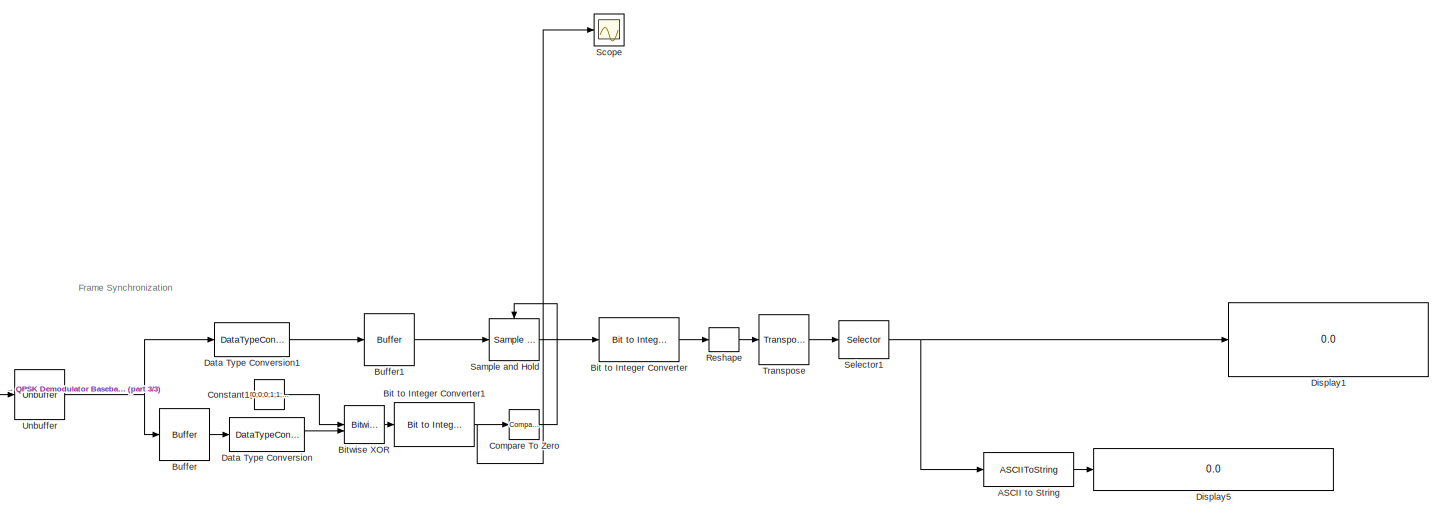
[diagram: root canvas - part 1/3, middle right region]
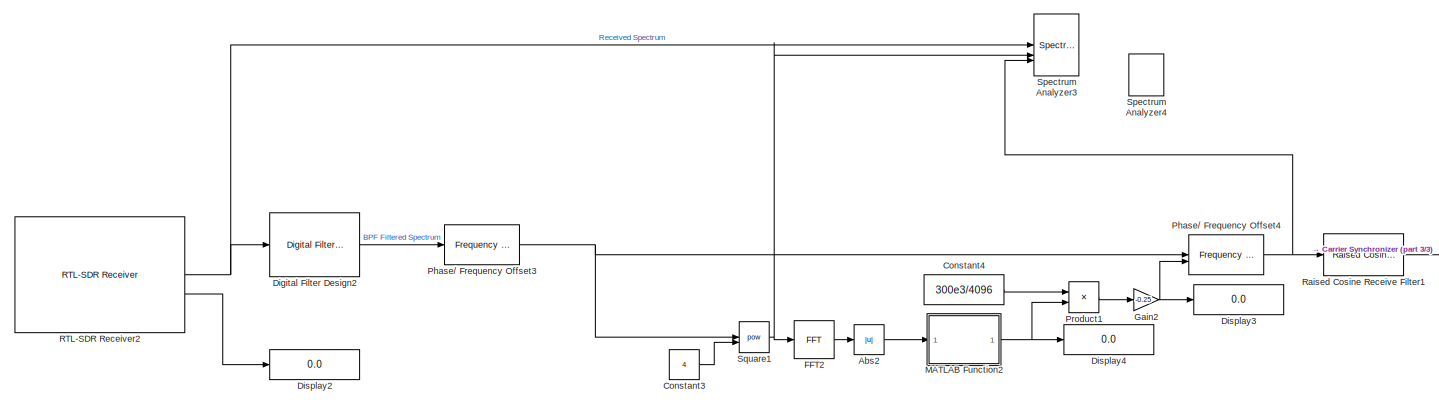
[diagram: root canvas - part 2/3, middle left region]
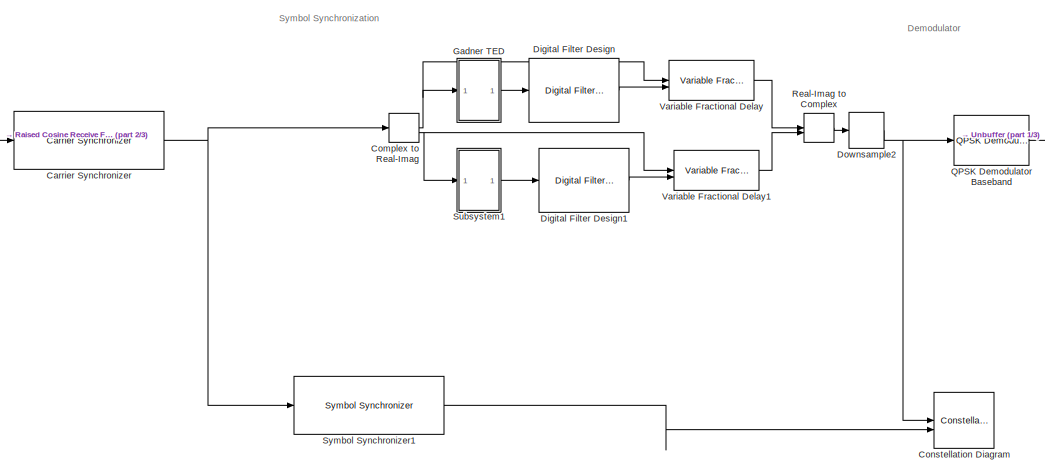
[diagram: root canvas - part 3/3, bottom center region]
MODEL slx_c1d138441025
KIND model
CONFIG AbsTol = auto
CONFIG EnableMultiTasking = off
CONFIG FixedStep = auto
CONFIG MaxStep = auto
CONFIG MinStep = auto
CONFIG RelTol = 1e-3
CONFIG SampleTimeConstraint = Unconstrained
CONFIG SolverName = VariableStepAuto
CONFIG StartTime = 0.0
CONFIG StopTime = inf
BLOCK [ASCIIToString] ASCII to String
  Commented = on
BLOCK [Abs] Abs2
  SaturateOnIntegerOverflow = off
BLOCK [Reference] Bit to Integer Converter  REF=simulink/Logic and Bit
Operations/Bit to Integer
Converter
  Commented = on
  SourceBlock = simulink/Logic and Bit\nOperations/Bit to Integer\nConverter
  SourceType = Bit to Integer Converter
BLOCK [Reference] Bit to Integer Converter1  REF=simulink/Logic and Bit
Operations/Bit to Integer
Converter
  Commented = on
  SourceBlock = simulink/Logic and Bit\nOperations/Bit to Integer\nConverter
  SourceType = Bit to Integer Converter
BLOCK [Reference] Bitwise XOR  REF=simulink/Logic and Bit
Operations/Bitwise
Operator
  Commented = on
  LibrarySourceBlock = simulink/Quick Insert/Logic and Bit\nOperations/Bitwise XOR
  SourceBlock = simulink/Logic and Bit\nOperations/Bitwise\nOperator
  SourceType = Bitwise Operator
BLOCK [Buffer] Buffer
  Commented = on
  N = 32
  OutputFrames = off
  V = 31
BLOCK [Buffer] Buffer1
  Commented = on
  N = 160
  OutputFrames = off
  V = 159
BLOCK [Reference] Carrier Synchronizer  REF=commsync2/Carrier Synchronizer
  SourceBlock = commsync2/Carrier Synchronizer
  SourceType = Carrier Synchronizer
BLOCK [Reference] Compare To Zero  REF=simulink/Logic and Bit
Operations/Compare
To Zero
  Commented = on
  SourceBlock = simulink/Logic and Bit\nOperations/Compare\nTo Zero
  SourceType = Compare To Zero
BLOCK [ComplexToRealImag] Complex to Real-Imag
BLOCK [Constant] Constant1
  Commented = on
  OutDataTypeStr = boolean
  SampleTime = 1/10e6
  Value = [0;0;0;1;1;0;1;0;1;1;0;0;1;1;1;1;1;1;1;1;1;1;0;0;0;0;0;1;1;1;0;1]
  VectorParams1D = off
BLOCK [Constant] Constant3
  Value = 4
BLOCK [Constant] Constant4
  Value = 300e3/4096
BLOCK [ConstellationDiagram] Constellation Diagram
  GraphicalSettings = {"Style":{"BackgroundColor":[0.12941176470588237,0.12941176470588237,0.12941176470588237],"AxesColor":[0.07058823529411765,0.07058823529411765,0.07058823529411765],"LabelsColor":[0.8509803921568627,0.8509803921568627,0.8509803921568627],"LineStyle":["NONE","NONE"],"LineColor":[[1,0.9098039215686274,0.39215686274509803],[0.14901960784313725,0.5490196078431373,0.8666666666666667]],"LineWidth":[1,1],...<+404ch>
  NumInputPorts = 2
  ReferenceConstellation = {[0.7071+0.7071i          -0.7071+0.7071i          -0.7071-0.7071i            0.707-0.7071i][0.7071+0.7071i          -0.7071+0.7071i          -0.7071-0.7071i            0.707-0.7071i]}
  ScopeFrameLocation = window
  ShowLegend = on
  WasSavedAsWebScope = on
  WindowPosition = [1.000000,49.000000,2048.000000,1080.000000,]
BLOCK [DataTypeConversion] Data Type Conversion
  Commented = on
  OutDataTypeStr = boolean
  RndMeth = Floor
  SaturateOnIntegerOverflow = off
BLOCK [DataTypeConversion] Data Type Conversion1
  Commented = on
  OutDataTypeStr = uint8
  RndMeth = Floor
  SaturateOnIntegerOverflow = off
BLOCK [Reference] Digital Filter Design  REF=dspfdesign/Digital
Filter Design
  SourceBlock = dspfdesign/Digital\nFilter Design
  SourceType = Digital Filter Design
  UserDataPersistent = on
BLOCK [Reference] Digital Filter Design1  REF=dspfdesign/Digital
Filter Design
  SourceBlock = dspfdesign/Digital\nFilter Design
  SourceType = Digital Filter Design
  UserDataPersistent = on
BLOCK [Reference] Digital Filter Design2  REF=dspfdesign/Digital
Filter Design
  SourceBlock = dspfdesign/Digital\nFilter Design
  SourceType = Digital Filter Design
  UserDataPersistent = on
BLOCK [Display] Display1
  Commented = on
  Decimation = 1
  Format = hex (Stored Integer)
BLOCK [Display] Display2
  Decimation = 1
BLOCK [Display] Display3
  Decimation = 1
BLOCK [Display] Display4
  Decimation = 1
BLOCK [Display] Display5
  Commented = on
  Decimation = 1
BLOCK [DownSample] Downsample2
  AllowArbitraryFixedInput = on
  RateOptions = Allow multirate processing
BLOCK [Reference] FFT2  REF=dspxfrm3/FFT
  SourceBlock = dspxfrm3/FFT
  SourceType = FFT
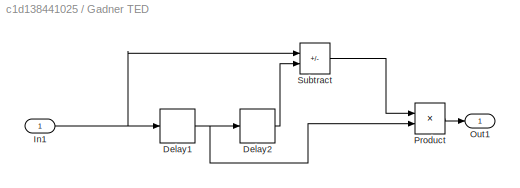
BLOCK [SubSystem] Gadner TED
BLOCK [Delay] Gadner TED/Delay1
  DelayLength = 1
  InitialCondition = 0
  InputPortMap = u0
BLOCK [Delay] Gadner TED/Delay2
  DelayLength = 1
  InitialCondition = 0
  InputPortMap = u0
BLOCK [Inport] Gadner TED/In1
BLOCK [Outport] Gadner TED/Out1
BLOCK [Product] Gadner TED/Product
BLOCK [Sum] Gadner TED/Subtract
  IconShape = rectangular
  Inputs = +-
BLOCK [Gain] Gain2
  Gain = -0.25
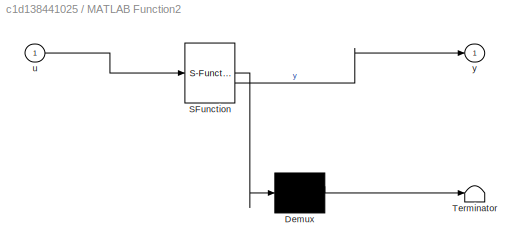
BLOCK [SubSystem] MATLAB Function2
  ErrorFcn = Stateflow.Translate.translate
  PermitHierarchicalResolution = ExplicitOnly
  SFBlockType = MATLAB Function
  TreatAsAtomicUnit = on
BLOCK [Demux] MATLAB Function2/ Demux 
  Outputs = 1
BLOCK [S-Function] MATLAB Function2/ SFunction 
  EnableBusSupport = on
  FunctionName = sf_sfun
  PortCounts = [1 2]
  SFcnIsStateOwnerBlock = off
  SFunctionDeploymentMode = off
  Tag = Stateflow S-Function 3
BLOCK [Terminator] MATLAB Function2/ Terminator 
BLOCK [Inport] MATLAB Function2/u
BLOCK [Outport] MATLAB Function2/y
BLOCK [Reference] Phase// Frequency Offset3  REF=commrflib2/Phase//
Frequency
Offset
  SourceBlock = commrflib2/Phase//\nFrequency\nOffset
  SourceType = Phase/Frequency Offset
BLOCK [Reference] Phase// Frequency Offset4  REF=commrflib2/Phase//
Frequency
Offset
  SourceBlock = commrflib2/Phase//\nFrequency\nOffset
  SourceType = Phase/Frequency Offset
BLOCK [Product] Product1
BLOCK [Reference] QPSK Demodulator Baseband  REF=commdigbbndpm3/QPSK
Demodulator
Baseband
  Commented = on
  SourceBlock = commdigbbndpm3/QPSK\nDemodulator\nBaseband
  SourceType = QPSK Demodulator Baseband
BLOCK [Reference] RTL-SDR Receiver2  REF=sdrrlib/RTL-SDR
Receiver
  SourceBlock = sdrrlib/RTL-SDR\nReceiver
  SourceType = RTL-SDR Receiver
BLOCK [Reference] Raised Cosine Receive Filter1  REF=commfilt2/Raised Cosine
Receive Filter
  SourceBlock = commfilt2/Raised Cosine\nReceive Filter
  SourceType = Raised Cosine Receive Filter
BLOCK [RealImagToComplex] Real-Imag to Complex
BLOCK [Reshape] Reshape
  Commented = on
  OutputDimensionality = Row vector (2-D)
  OutputDimensions = [1,]
BLOCK [Reference] Sample and Hold  REF=dspsigops/Sample
and Hold
  Commented = on
  LibrarySourceBlock = dsphdlsupportsigops/Sample\nand Hold
  SourceBlock = dspsigops/Sample\nand Hold
  SourceType = Sample and Hold
BLOCK [Scope] Scope
  Floating = off
  NumInputPorts = 1
  ScopeSpecificationString = Simulink.scopes.TimeScopeBlockCfg('CurrentConfiguration', extmgr.ConfigurationSet(extmgr.Configuration('Core','General UI',true),extmgr.Configuration('Core','Source UI',true),extmgr.Configuration('Sources','WiredSimulink',true),extmgr.Configuration('Visuals','Time Domain',true,'SerializedDisplays',{struct('MinYLimReal','-510490866.75','MaxYLimReal','4823663600.75','YLabelReal','','MinYLimMag','   ...<+1619ch>
BLOCK [Selector] Selector1
  Commented = on
  IndexOptions = Index vector (dialog)
  Indices = [5:15]
  InputPortWidth = 20
  OutputSizes = 1
BLOCK [SpectrumAnalyzer] Spectrum Analyzer3
  Commented = on
  ExpandToolstrip = on
  GraphicalSettings = {"GraphicalSettings":{"Style":{"BackgroundColor":[0.12941176470588237,0.12941176470588237,0.12941176470588237],"AxesColor":[0.07058823529411765,0.07058823529411765,0.07058823529411765],"LabelsColor":[0.8509803921568627,0.8509803921568627,0.8509803921568627],"PreserveColors":false,"Visible":[true,false,false],"LineStyle":["-","-","-"],"LineColor":[[1,0.9098039215686274,0.39215686274509803],[0.14901...<+1157ch>
  NumInputPorts = 3
  ScopeFrameLocation = window
  SelectedToolstripTab = spectrumAnalyzerToolstrip.measurementsTab
  ShowLegend = on
  WasSavedAsWebScope = on
  WindowPosition = [111.000000,294.000000,842.000000,726.000000,]
  YLimits = [-283.1209233885463,30.99910976663294]
BLOCK [SpectrumAnalyzer] Spectrum Analyzer4
  Commented = on
  GraphicalSettings = {"GraphicalSettings":{"Style":{"BackgroundColor":[0.12941176470588237,0.12941176470588237,0.12941176470588237],"AxesColor":[0.07058823529411765,0.07058823529411765,0.07058823529411765],"LabelsColor":[0.8509803921568627,0.8509803921568627,0.8509803921568627],"PreserveColors":false,"Visible":[true,true],"LineStyle":["-","-"],"LineColor":[[1,0.9098039215686274,0.39215686274509803],[0.1490196078431372...<+1052ch>
  NumInputPorts = 2
  ScopeFrameLocation = window
  SelectedToolstripTab = spectrumAnalyzerToolstrip.measurementsTab
  ShowLegend = on
  WasSavedAsWebScope = on
  WindowPosition = [1367.000000,49.000000,680.000000,1072.000000,]
  YLimits = [-671.6431784277555,755.4983202728769]
BLOCK [Math] Square1
  Operator = pow
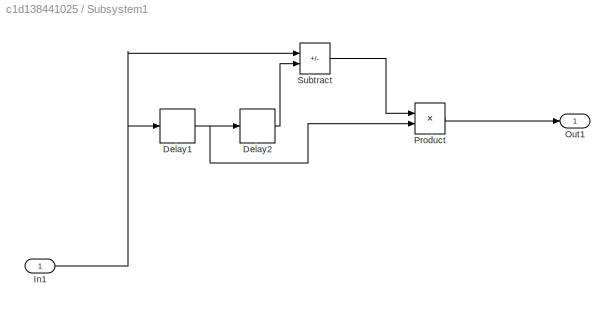
BLOCK [SubSystem] Subsystem1
BLOCK [Delay] Subsystem1/Delay1
  DelayLength = 1
  InitialCondition = 0
  InputPortMap = u0
BLOCK [Delay] Subsystem1/Delay2
  DelayLength = 1
  InitialCondition = 0
  InputPortMap = u0
BLOCK [Inport] Subsystem1/In1
BLOCK [Outport] Subsystem1/Out1
BLOCK [Product] Subsystem1/Product
BLOCK [Sum] Subsystem1/Subtract
  IconShape = rectangular
  Inputs = +-
BLOCK [Reference] Symbol Synchronizer1  REF=commsync2/Symbol Synchronizer
  SourceBlock = commsync2/Symbol Synchronizer
  SourceType = Symbol Synchronizer
BLOCK [Reference] Transpose  REF=matrix_library/Transpose
  Commented = on
  LibrarySourceBlock = simulink/Matrix\nOperations/Transpose
  SourceBlock = matrix_library/Transpose
  SourceType = Transpose
BLOCK [Unbuffer] Unbuffer
  Commented = on
BLOCK [Reference] Variable Fractional Delay  REF=dspsigops/Variable
Fractional Delay
  SourceBlock = dspsigops/Variable\nFractional Delay
  SourceType = Variable Fractional Delay
  UserDataPersistent = on
BLOCK [Reference] Variable Fractional Delay1  REF=dspsigops/Variable
Fractional Delay
  SourceBlock = dspsigops/Variable\nFractional Delay
  SourceType = Variable Fractional Delay
  UserDataPersistent = on
ANNOTATION (root): Demodulator
ANNOTATION (root): Frame Synchronization
ANNOTATION (root): Symbol Synchronization
LINE ASCII to String:1 -> Display5:1
LINE Abs2:1 -> MATLAB Function2:1
NET Bit to Integer Converter1:1 -> Compare To Zero:1, Scope:1
LINE Bit to Integer Converter:1 -> Reshape:1
LINE Bitwise XOR:1 -> Bit to Integer Converter1:1
LINE Buffer1:1 -> Sample and Hold:1
LINE Buffer:1 -> Data Type Conversion:1
NET Carrier Synchronizer:1 -> Complex to Real-Imag:1, Symbol Synchronizer1:1
LINE Compare To Zero:1 -> Sample and Hold:trigger
NET Complex to Real-Imag:1 -> Gadner TED:1, Variable Fractional Delay:1
NET Complex to Real-Imag:2 -> Subsystem1:1, Variable Fractional Delay1:1
LINE Constant1:1 -> Bitwise XOR:1
LINE Constant3:1 -> Square1:2
LINE Constant4:1 -> Product1:1
LINE Data Type Conversion1:1 -> Buffer1:1
LINE Data Type Conversion:1 -> Bitwise XOR:2
LINE Digital Filter Design1:1 -> Variable Fractional Delay1:2
LINE Digital Filter Design2:1 -> Phase// Frequency Offset3:1
LINE Digital Filter Design:1 -> Variable Fractional Delay:2
NET Downsample2:1 -> Constellation Diagram:1, QPSK Demodulator Baseband:1
LINE FFT2:1 -> Abs2:1
NET Gadner TED/Delay1:1 -> Gadner TED/Delay2:1, Gadner TED/Product:2
LINE Gadner TED/Delay2:1 -> Gadner TED/Subtract:2
NET Gadner TED/In1:1 -> Gadner TED/Delay1:1, Gadner TED/Subtract:1
LINE Gadner TED/Product:1 -> Gadner TED/Out1:1
LINE Gadner TED/Subtract:1 -> Gadner TED/Product:1
LINE Gadner TED:1 -> Digital Filter Design:1
NET Gain2:1 -> Display3:1, Phase// Frequency Offset4:2
NET MATLAB Function2:1 -> Display4:1, Product1:2
NET Phase// Frequency Offset3:1 -> Phase// Frequency Offset4:1, Square1:1
NET Phase// Frequency Offset4:1 -> Raised Cosine Receive Filter1:1, Spectrum Analyzer3:3
LINE Product1:1 -> Gain2:1
LINE QPSK Demodulator Baseband:1 -> Unbuffer:1
NET RTL-SDR Receiver2:1 -> Digital Filter Design2:1, Spectrum Analyzer3:1
LINE RTL-SDR Receiver2:2 -> Display2:1
LINE Raised Cosine Receive Filter1:1 -> Carrier Synchronizer:1
LINE Real-Imag to Complex:1 -> Downsample2:1
LINE Reshape:1 -> Transpose:1
LINE Sample and Hold:1 -> Bit to Integer Converter:1
NET Selector1:1 -> ASCII to String:1, Display1:1
NET Square1:1 -> FFT2:1, Spectrum Analyzer3:2
NET Subsystem1/Delay1:1 -> Subsystem1/Delay2:1, Subsystem1/Product:2
LINE Subsystem1/Delay2:1 -> Subsystem1/Subtract:2
NET Subsystem1/In1:1 -> Subsystem1/Delay1:1, Subsystem1/Subtract:1
LINE Subsystem1/Product:1 -> Subsystem1/Out1:1
LINE Subsystem1/Subtract:1 -> Subsystem1/Product:1
LINE Subsystem1:1 -> Digital Filter Design1:1
LINE Symbol Synchronizer1:1 -> Constellation Diagram:2
LINE Transpose:1 -> Selector1:1
NET Unbuffer:1 -> Buffer:1, Data Type Conversion1:1
LINE Variable Fractional Delay1:1 -> Real-Imag to Complex:2
LINE Variable Fractional Delay:1 -> Real-Imag to Complex:1
note: NET lines group one-source signal fan-out (src -> all destinations, sorted); 1:1 wires keep LINE
CHART MATLAB Function2 states=1 transitions=1
  STATE_LABEL 'eML_blk_kernel()'
  STATE_LABEL 'SCRIPT:\nfunction y = fcn(u)\n\n[M,idx] = max(u);\nif idx > 2048\n    y = 4096-idx;\nelse\n    y=idx;\nend\n\n\n\n'
CHART  states=0 transitions=0
